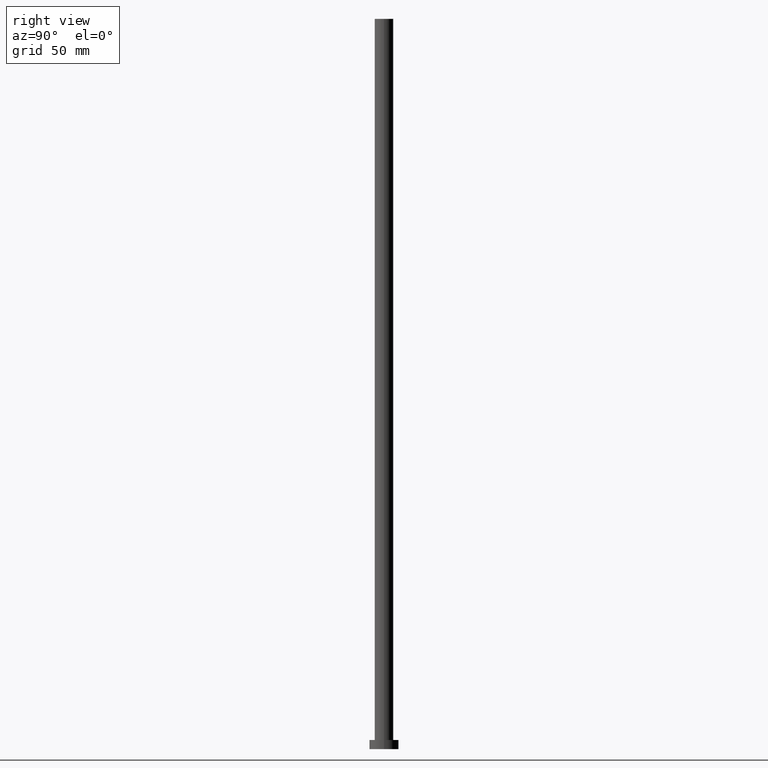
[diagram: clean part render]
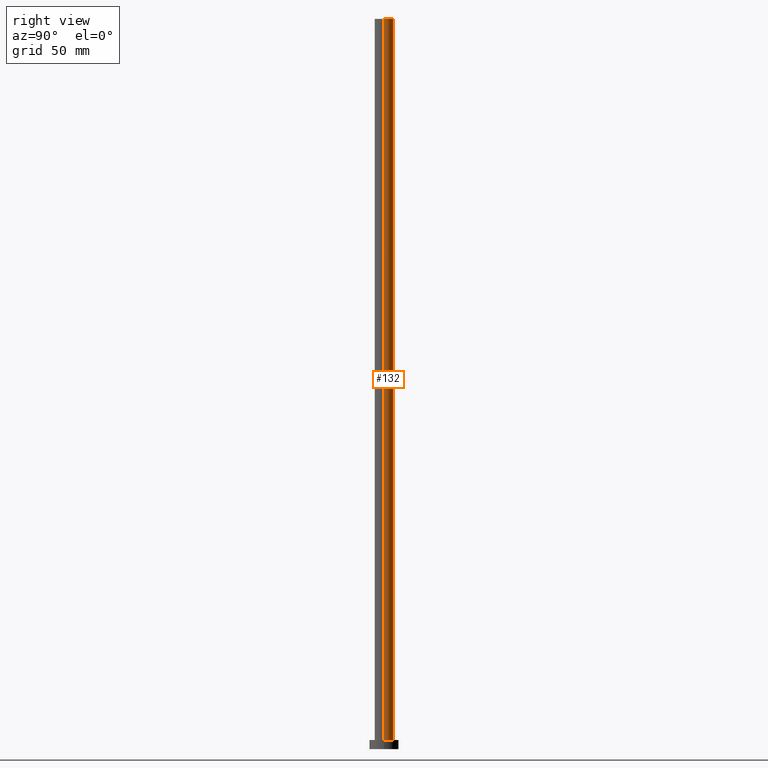
[diagram: same view with one face highlighted and labeled with its STEP entity id]
A machine part, right view. The second image highlights one B-rep face of the part: STEP entity #132.
In plain terms, the highlighted cylindrical surface (edge-blend (fillet) strip) has radius 5.1 mm, axis along (-0, -0, -1).
Its self-contained STEP definition (entity closure, byte-faithful):
#6 = ORIENTED_EDGE ( 'NONE', *, *, #30, .F. ) ;
#19 = CARTESIAN_POINT ( 'NONE',  ( -5.100000000000001421, 0.000000000000000000, 400.0000000000000000 ) ) ;
#20 = EDGE_CURVE ( 'NONE', #83, #190, #181, .T. ) ;
#23 = LINE ( 'NONE', #62, #133 ) ;
#27 = ORIENTED_EDGE ( 'NONE', *, *, #20, .F. ) ;
#30 = EDGE_CURVE ( 'NONE', #149, #83, #177, .T. ) ;
#31 = CIRCLE ( 'NONE', #123, 5.100000000000001421 ) ;
#39 = DIRECTION ( 'NONE',  ( -0.000000000000000000, -0.000000000000000000, -1.000000000000000000 ) ) ;
#49 = ORIENTED_EDGE ( 'NONE', *, *, #223, .T. ) ;
#62 = CARTESIAN_POINT ( 'NONE',  ( 5.100000000000001421, 6.245698675651501825E-16, 400.0000000000000000 ) ) ;
#63 = AXIS2_PLACEMENT_3D ( 'NONE', #232, #178, #198 ) ;
#69 = DIRECTION ( 'NONE',  ( -0.000000000000000000, -0.000000000000000000, -1.000000000000000000 ) ) ;
#79 = VECTOR ( 'NONE', #39, 1000.000000000000000 ) ;
#83 = VERTEX_POINT ( 'NONE', #19 ) ;
#104 = CARTESIAN_POINT ( 'NONE',  ( 0.000000000000000000, 0.000000000000000000, 400.0000000000000000 ) ) ;
#112 = DIRECTION ( 'NONE',  ( -0.000000000000000000, -0.000000000000000000, -1.000000000000000000 ) ) ;
#119 = CARTESIAN_POINT ( 'NONE',  ( 0.000000000000000000, 0.000000000000000000, 5.000000000000000000 ) ) ;
#123 = AXIS2_PLACEMENT_3D ( 'NONE', #119, #183, #165 ) ;
#132 = ADVANCED_FACE ( 'NONE', ( #138 ), #179, .T. ) ;
#133 = VECTOR ( 'NONE', #69, 1000.000000000000000 ) ;
#134 = CARTESIAN_POINT ( 'NONE',  ( 5.100000000000001421, 6.245698675651501825E-16, 400.0000000000000000 ) ) ;
#138 = FACE_OUTER_BOUND ( 'NONE', #246, .T. ) ;
#144 = CARTESIAN_POINT ( 'NONE',  ( 5.100000000000001421, 6.245698675651501825E-16, 5.000000000000000000 ) ) ;
#149 = VERTEX_POINT ( 'NONE', #134 ) ;
#165 = DIRECTION ( 'NONE',  ( 1.000000000000000000, 0.000000000000000000, 0.000000000000000000 ) ) ;
#177 = CIRCLE ( 'NONE', #63, 5.100000000000001421 ) ;
#178 = DIRECTION ( 'NONE',  ( 0.000000000000000000, 0.000000000000000000, 1.000000000000000000 ) ) ;
#179 = CYLINDRICAL_SURFACE ( 'NONE', #215, 5.100000000000001421 ) ;
#181 = LINE ( 'NONE', #255, #79 ) ;
#183 = DIRECTION ( 'NONE',  ( 0.000000000000000000, 0.000000000000000000, 1.000000000000000000 ) ) ;
#190 = VERTEX_POINT ( 'NONE', #202 ) ;
#192 = EDGE_CURVE ( 'NONE', #149, #206, #23, .T. ) ;
#193 = DIRECTION ( 'NONE',  ( -1.000000000000000000, 0.000000000000000000, 0.000000000000000000 ) ) ;
#198 = DIRECTION ( 'NONE',  ( 1.000000000000000000, 0.000000000000000000, 0.000000000000000000 ) ) ;
#202 = CARTESIAN_POINT ( 'NONE',  ( -5.100000000000001421, 0.000000000000000000, 5.000000000000000000 ) ) ;
#206 = VERTEX_POINT ( 'NONE', #144 ) ;
#215 = AXIS2_PLACEMENT_3D ( 'NONE', #104, #112, #193 ) ;
#223 = EDGE_CURVE ( 'NONE', #206, #190, #31, .T. ) ;
#228 = ORIENTED_EDGE ( 'NONE', *, *, #192, .T. ) ;
#232 = CARTESIAN_POINT ( 'NONE',  ( 0.000000000000000000, 0.000000000000000000, 400.0000000000000000 ) ) ;
#246 = EDGE_LOOP ( 'NONE', ( #6, #228, #49, #27 ) ) ;
#255 = CARTESIAN_POINT ( 'NONE',  ( -5.100000000000001421, 0.000000000000000000, 400.0000000000000000 ) ) ;